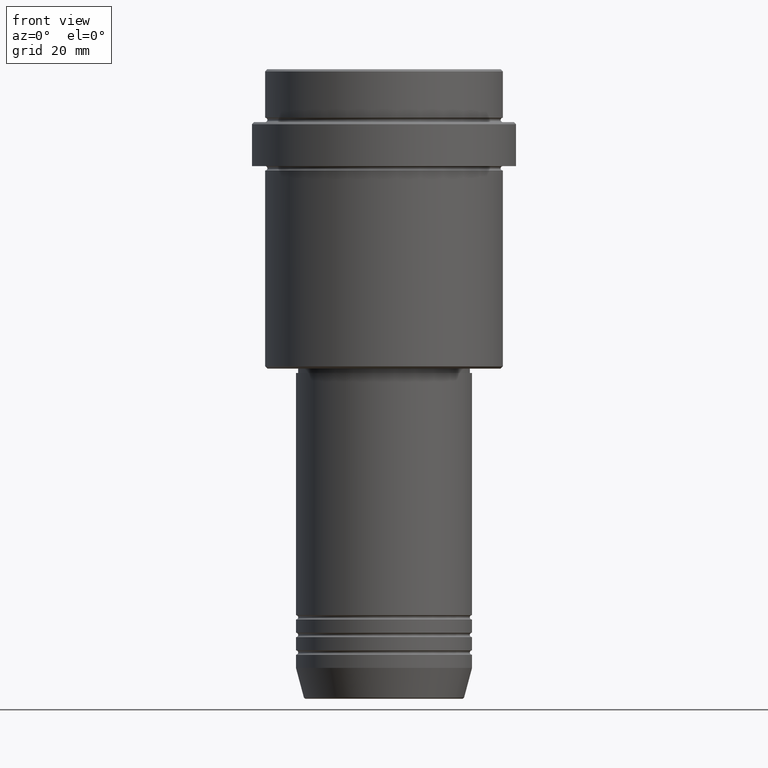
[diagram: clean part render]
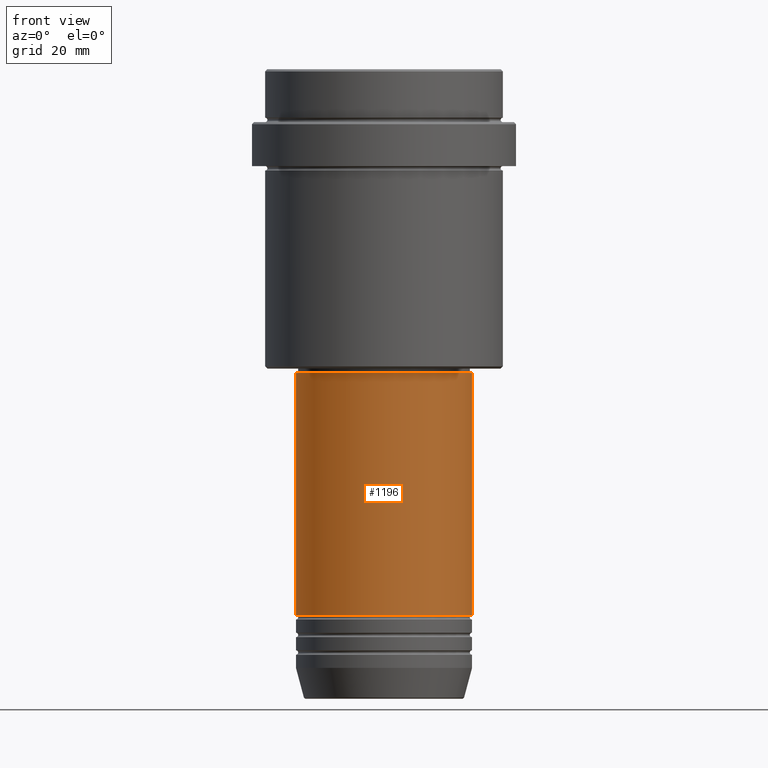
[diagram: same view with one face highlighted and labeled with its STEP entity id]
A machine part, front view. The second image highlights one B-rep face of the part: STEP entity #1196.
In plain terms, the highlighted cylindrical surface (partial cylindrical patch) has radius 20 mm, axis along (-0, -0, 1).
Its self-contained STEP definition (entity closure, byte-faithful):
#44 = CARTESIAN_POINT ( 'NONE',  ( 19.99999999999999645, 0.000000000000000000, 0.000000000000000000 ) ) ;
#61 = ORIENTED_EDGE ( 'NONE', *, *, #443, .F. ) ;
#113 = EDGE_CURVE ( 'NONE', #128, #734, #1273, .T. ) ;
#123 = CARTESIAN_POINT ( 'NONE',  ( -19.99999999999999645, 2.449293598294706119E-15, -69.00000000000001421 ) ) ;
#128 = VERTEX_POINT ( 'NONE', #685 ) ;
#194 = LINE ( 'NONE', #1182, #1327 ) ;
#199 = AXIS2_PLACEMENT_3D ( 'NONE', #629, #618, #719 ) ;
#225 = DIRECTION ( 'NONE',  ( 1.000000000000000000, 0.000000000000000000, 0.000000000000000000 ) ) ;
#235 = EDGE_CURVE ( 'NONE', #1158, #128, #469, .T. ) ;
#254 = FACE_OUTER_BOUND ( 'NONE', #816, .T. ) ;
#416 = VERTEX_POINT ( 'NONE', #123 ) ;
#443 = EDGE_CURVE ( 'NONE', #1158, #416, #194, .T. ) ;
#469 = CIRCLE ( 'NONE', #199, 20.00000000000000000 ) ;
#618 = DIRECTION ( 'NONE',  ( -0.000000000000000000, -0.000000000000000000, 1.000000000000000000 ) ) ;
#629 = CARTESIAN_POINT ( 'NONE',  ( 0.000000000000000000, 0.000000000000000000, -123.9999999999999005 ) ) ;
#651 = VECTOR ( 'NONE', #796, 1000.000000000000000 ) ;
#684 = CYLINDRICAL_SURFACE ( 'NONE', #1243, 19.99999999999999645 ) ;
#685 = CARTESIAN_POINT ( 'NONE',  ( 20.00000000000000000, 0.000000000000000000, -123.9999999999999005 ) ) ;
#705 = CARTESIAN_POINT ( 'NONE',  ( 19.99999999999999645, 0.000000000000000000, -69.00000000000001421 ) ) ;
#719 = DIRECTION ( 'NONE',  ( 1.000000000000000000, 0.000000000000000000, 0.000000000000000000 ) ) ;
#734 = VERTEX_POINT ( 'NONE', #705 ) ;
#758 = CARTESIAN_POINT ( 'NONE',  ( 0.000000000000000000, 0.000000000000000000, 0.000000000000000000 ) ) ;
#796 = DIRECTION ( 'NONE',  ( -0.000000000000000000, -0.000000000000000000, 1.000000000000000000 ) ) ;
#816 = EDGE_LOOP ( 'NONE', ( #61, #1404, #1355, #1266 ) ) ;
#818 = CARTESIAN_POINT ( 'NONE',  ( 0.000000000000000000, 0.000000000000000000, -69.00000000000001421 ) ) ;
#902 = AXIS2_PLACEMENT_3D ( 'NONE', #818, #1385, #1377 ) ;
#1110 = CARTESIAN_POINT ( 'NONE',  ( -20.00000000000000000, 2.449293598294706513E-15, -123.9999999999999005 ) ) ;
#1144 = CIRCLE ( 'NONE', #902, 19.99999999999999645 ) ;
#1158 = VERTEX_POINT ( 'NONE', #1110 ) ;
#1182 = CARTESIAN_POINT ( 'NONE',  ( -19.99999999999999645, 2.449293598294706119E-15, 0.000000000000000000 ) ) ;
#1196 = ADVANCED_FACE ( 'NONE', ( #254 ), #684, .T. ) ;
#1208 = DIRECTION ( 'NONE',  ( -0.000000000000000000, -0.000000000000000000, 1.000000000000000000 ) ) ;
#1213 = DIRECTION ( 'NONE',  ( -0.000000000000000000, -0.000000000000000000, 1.000000000000000000 ) ) ;
#1231 = EDGE_CURVE ( 'NONE', #416, #734, #1144, .T. ) ;
#1243 = AXIS2_PLACEMENT_3D ( 'NONE', #758, #1213, #225 ) ;
#1266 = ORIENTED_EDGE ( 'NONE', *, *, #1231, .F. ) ;
#1273 = LINE ( 'NONE', #44, #651 ) ;
#1327 = VECTOR ( 'NONE', #1208, 1000.000000000000000 ) ;
#1355 = ORIENTED_EDGE ( 'NONE', *, *, #113, .T. ) ;
#1377 = DIRECTION ( 'NONE',  ( 1.000000000000000000, 0.000000000000000000, 0.000000000000000000 ) ) ;
#1385 = DIRECTION ( 'NONE',  ( -0.000000000000000000, -0.000000000000000000, 1.000000000000000000 ) ) ;
#1404 = ORIENTED_EDGE ( 'NONE', *, *, #235, .T. ) ;